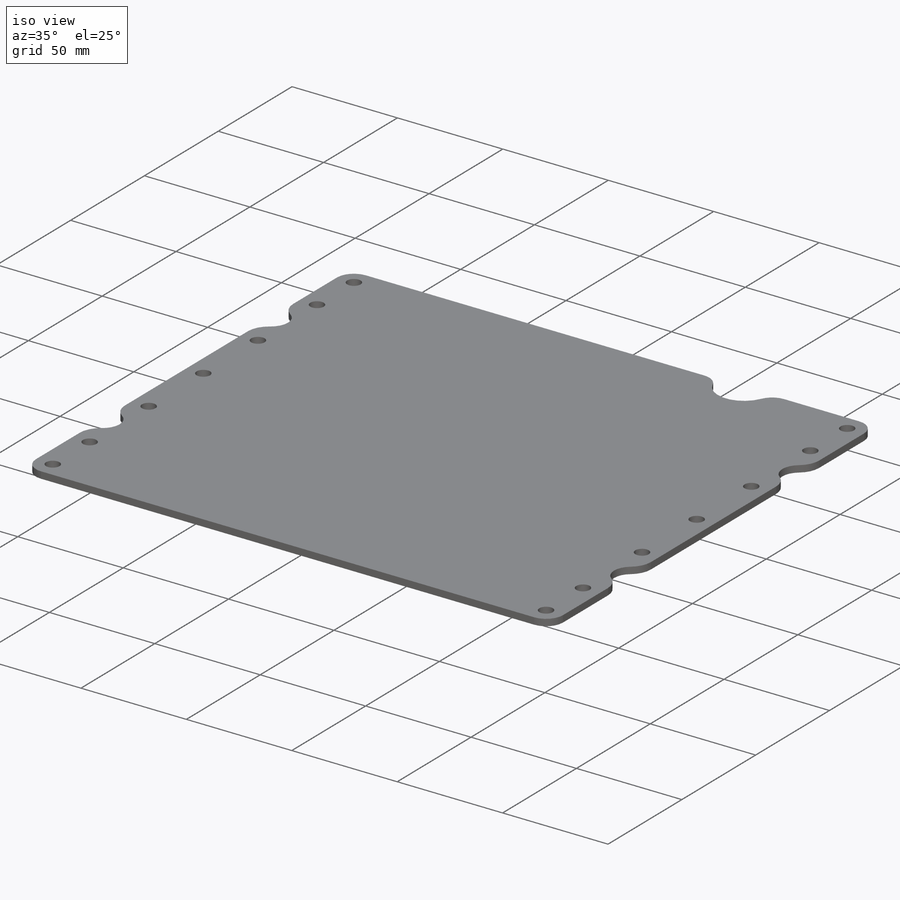
[diagram: iso view]
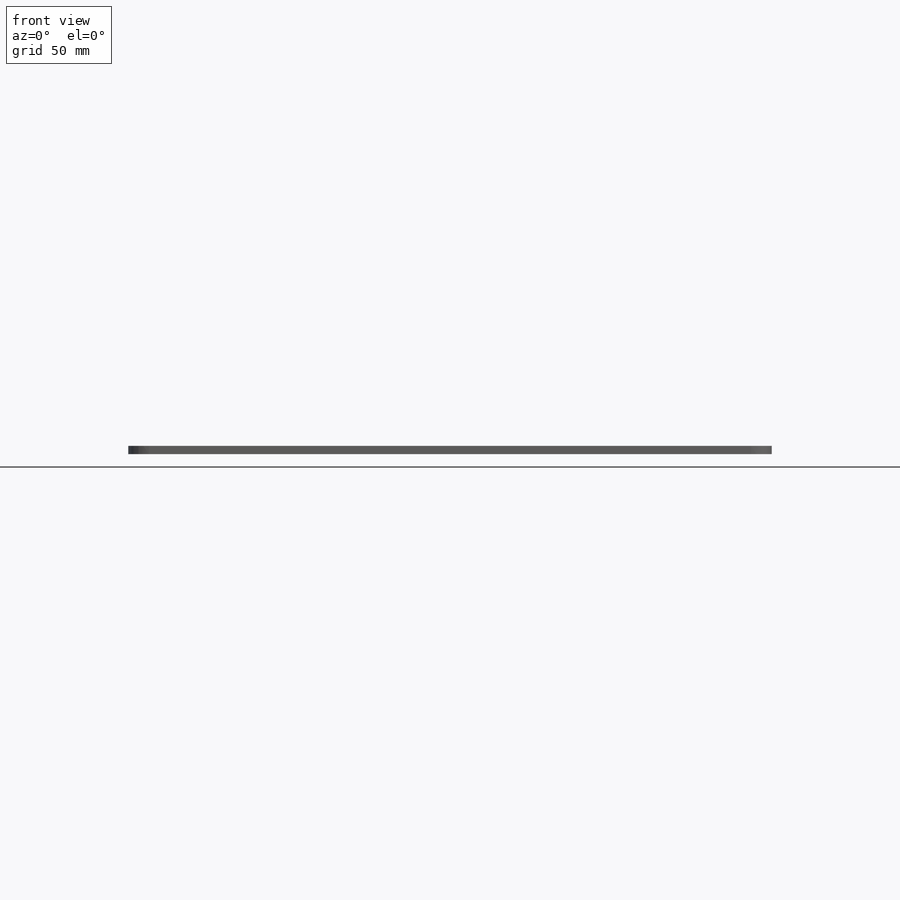
[diagram: front view]
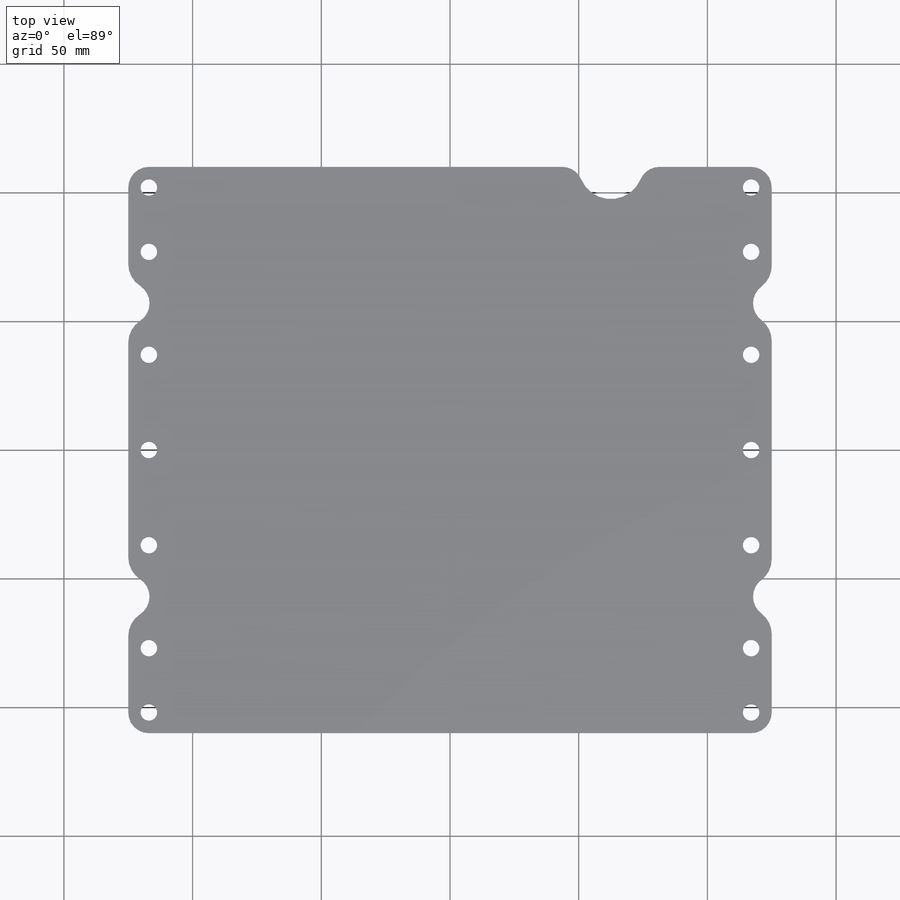
[diagram: top view]
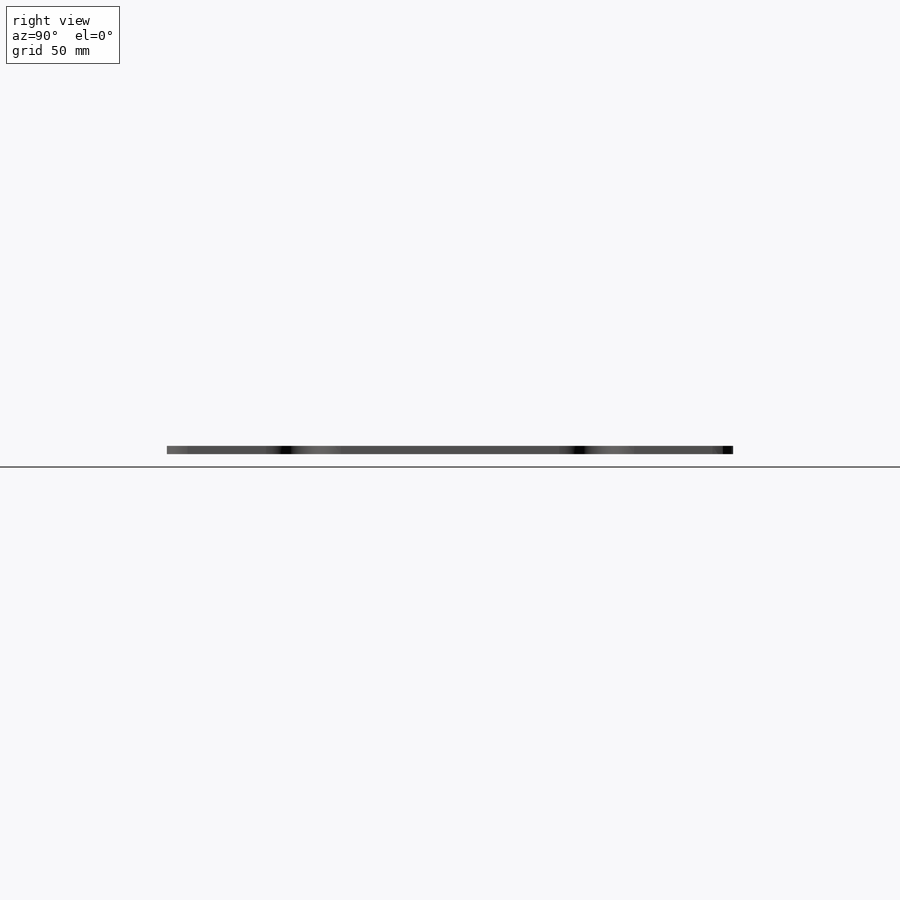
[diagram: right view]
SOLIDWORKS PART (.sldprt)
format: sldprt  version: not decoded by parser v0  size: 371,712 bytes
history: native  units: mm
features: sketch x6, fillet x5, cut_extrude x4, extrude x2, material x1 (+16 scaffold rows collapsed)
feature tree (34):
  scaffold x16  (default folders/planes/origin — collapsed)
  material  "Glass"
  sketch  "Sketch1"  dims[D1=250.0mm D2=220.0mm]
  extrude  "Boss-Extrude1"  Depth=3.175mm
  sketch  "Sketch2"  dims[D1=6.4mm D2=8.0mm D3=8.0mm D4=20.0mm D5=25.0mm]
  cut_extrude  "Cut-Extrude1"  [1 undecoded]
  fillet  "Fillet1"  Radius=8mm
  sketch  "Sketch4"  dims[c1.D1=25.0mm c1.D2=~18.308254mm c2.D2=90.0deg c3.D2=20.0mm c3.D3=49.9626mm c4.D2=50.0mm]
  cut_extrude  "Cut-Extrude3"  [1 undecoded]
  fillet  "Fillet3"  Radius=8mm
  sketch  "Sketch5"  dims[c1.D1=16.5mm c1.D2=2.0mm c1.D4=8.0mm c2.D2=2.0mm c2.D3=~18.288582mm c3.D3=45.0deg c3.D5=25.0mm c3.D4=1.0mm c3.D6=3.5mm]
  cut_extrude  "Cut-Extrude4"  [1 undecoded]
  fillet  "Fillet4"  Radius=10mm
  fillet  "Fillet5"  Radius=8mm
  sketch  "Sketch6"  dims[D1=16.5mm]
  extrude  "Boss-Extrude2"  [1 undecoded]
  fillet  "Fillet6"  Radius=10mm
  sketch  "Sketch7"
  cut_extrude  "Cut-Extrude5"  [1 undecoded]
decode coverage: 11 of 17 modeling features carry decoded parameters
note: ~ marks probable driven/reference dimensions
note: 5 parameter values undecoded
summary: no parameter record found for 5 features
note: suppression state not decoded; provenance and decode notes live in map.json
